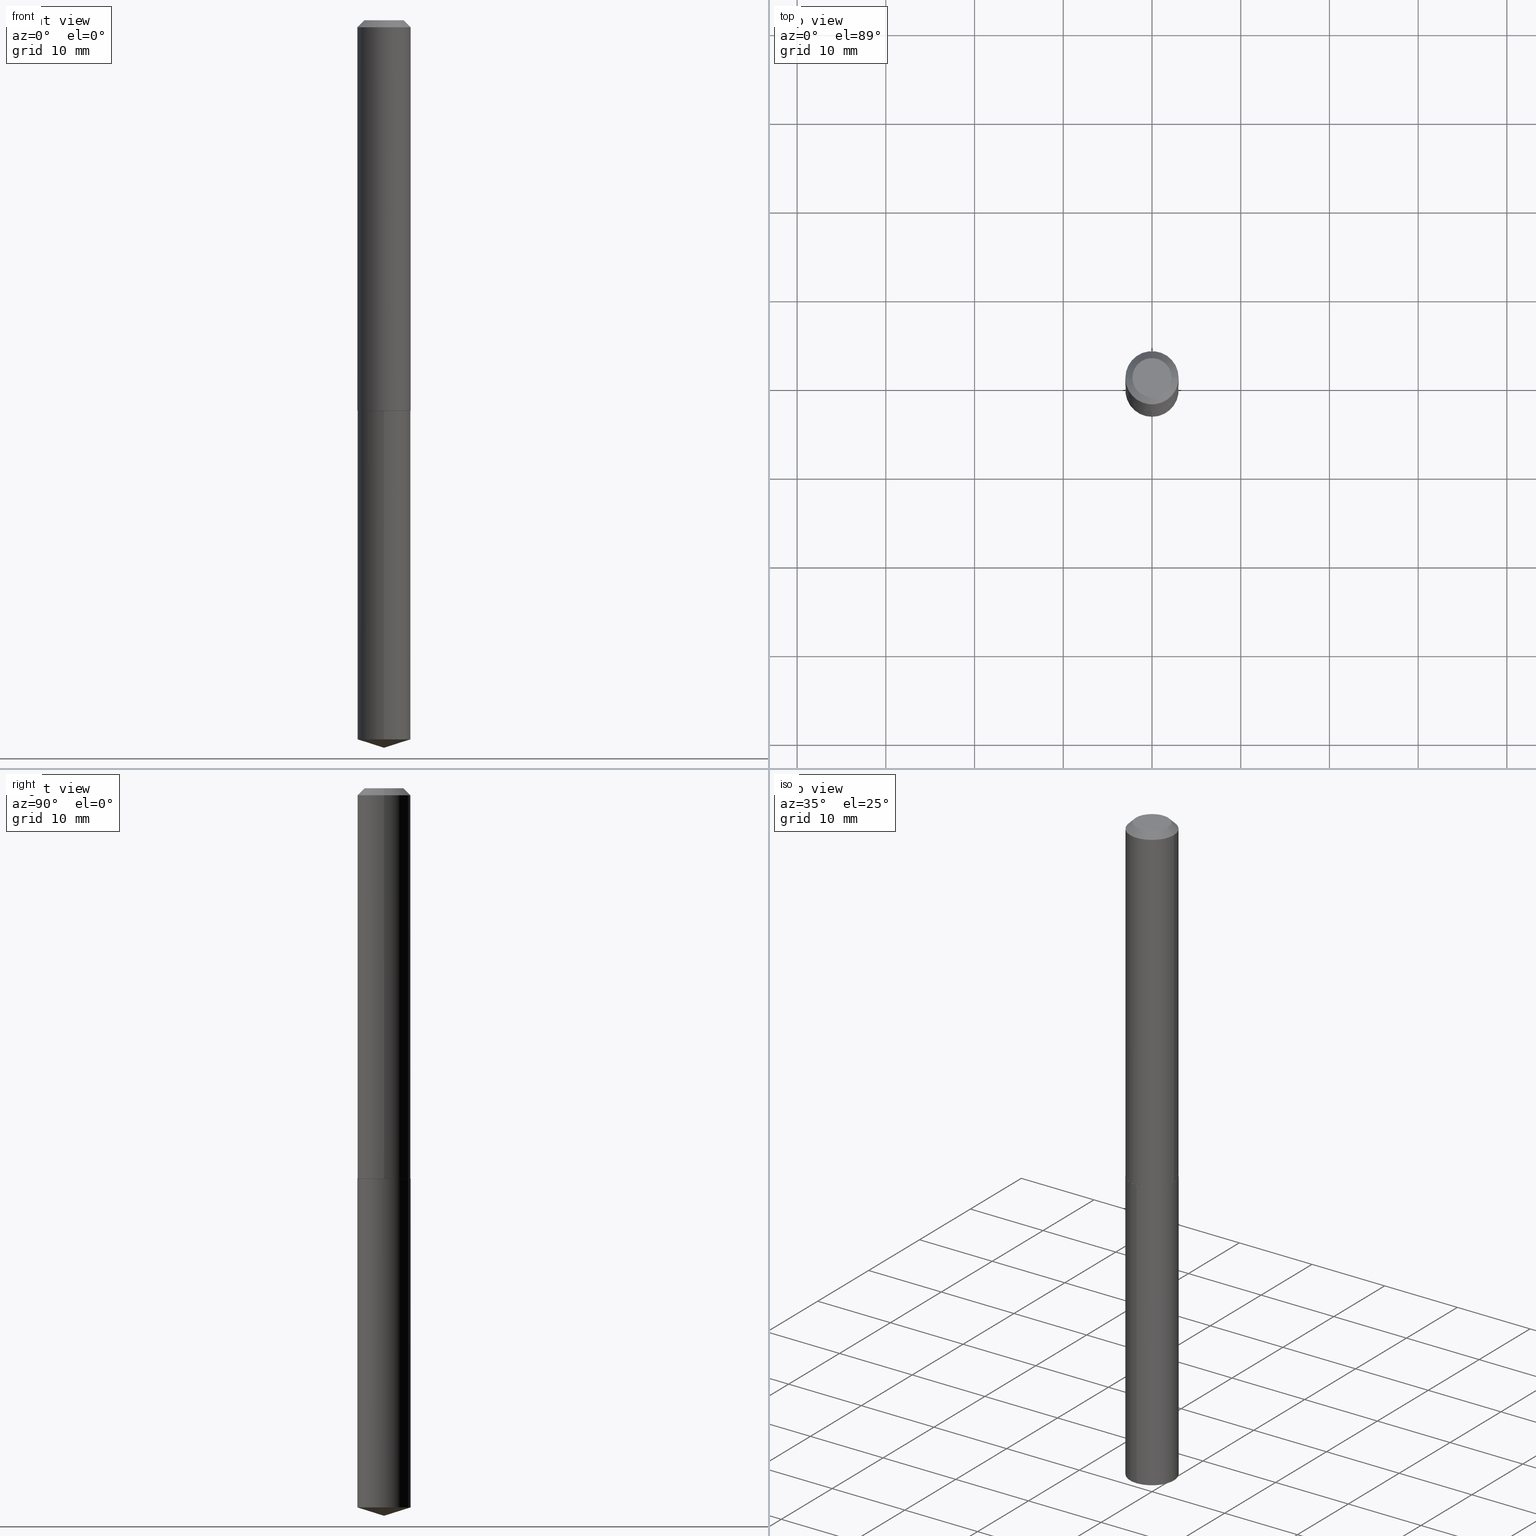
[diagram: canonical four-view strip — front | top / right | iso, engineering-drawing reading convention]
A machine part, canonical four-view strip (front | top / right | iso — engineering-drawing reading convention). The complete STEP part file that produces these views, byte-faithful:
ISO-10303-21;
HEADER;
FILE_DESCRIPTION (( 'STEP AP203' ),
    '1' );
FILE_NAME ('64131.STEP',
    '2024-04-23T10:20:50',
    ( '' ),
    ( '' ),
    'SwSTEP 2.0',
    'SolidWorks 2023',
    '' );
FILE_SCHEMA (( 'CONFIG_CONTROL_DESIGN' ));
ENDSEC;

DATA;
#1 = CARTESIAN_POINT ( 'NONE',  ( 0.000000000000000000, 0.000000000000000000, 0.000000000000000000 ) ) ;
#2 = LINE ( 'NONE', #189, #233 ) ;
#3 = DIRECTION ( 'NONE',  ( 2.438088387897960049E-29, -3.491481338843145188E-15, -1.000000000000000000 ) ) ;
#4 = DIRECTION ( 'NONE',  ( 1.000000000000000000, -6.982962677686269077E-15, 0.000000000000000000 ) ) ;
#5 = PLANE ( 'NONE',  #197 ) ;
#6 = LINE ( 'NONE', #369, #94 ) ;
#7 = APPLICATION_CONTEXT ( 'configuration controlled 3d designs of mechanical parts and assemblies' ) ;
#8 = CARTESIAN_POINT ( 'NONE',  ( 0.1176000000000005374, -6.869140386040006766E-15, -1.732200000000000184 ) ) ;
#9 = DIRECTION ( 'NONE',  ( -2.438704253266906551E-29, 3.501168563636492890E-15, 1.000000000000000000 ) ) ;
#10 = CARTESIAN_POINT ( 'NONE',  ( 4.234818331670801927E-29, -6.046198234474676063E-15, -1.731700000000000239 ) ) ;
#11 = PLANE ( 'NONE',  #272 ) ;
#12 = CALENDAR_DATE ( 2024, 23, 4 ) ;
#13 = VECTOR ( 'NONE', #275, 39.37007874015748143 ) ;
#14 = AXIS2_PLACEMENT_3D ( 'NONE', #1, #239, #81 ) ;
#15 = SECURITY_CLASSIFICATION_LEVEL ( 'unclassified' ) ;
#16 = CC_DESIGN_PERSON_AND_ORGANIZATION_ASSIGNMENT ( #291, #48, ( #346 ) ) ;
#17 = LINE ( 'NONE', #58, #152 ) ;
#18 = CALENDAR_DATE ( 2024, 23, 4 ) ;
#19 = CARTESIAN_POINT ( 'NONE',  ( -0.1181000000000002048, -5.207047263541997077E-15, -1.731700000000000239 ) ) ;
#20 = APPROVAL_STATUS ( 'not_yet_approved' ) ;
#21 = CIRCLE ( 'NONE', #304, 0.1181000000000002048 ) ;
#22 = EDGE_CURVE ( 'NONE', #297, #274, #278, .T. ) ;
#23 = PERSON_AND_ORGANIZATION ( #96, #124 ) ;
#24 = ORIENTED_EDGE ( 'NONE', *, *, #33, .T. ) ;
#25 = DIRECTION ( 'NONE',  ( -2.445468806185136597E-29, 3.491481338843145583E-15, 1.000000000000000000 ) ) ;
#26 = EDGE_LOOP ( 'NONE', ( #74, #269, #156, #247 ) ) ;
#27 = ADVANCED_BREP_SHAPE_REPRESENTATION ( '64131', ( #356, #91, #14 ), #244 ) ;
#28 = EDGE_CURVE ( 'NONE', #331, #301, #279, .T. ) ;
#29 = ORIENTED_EDGE ( 'NONE', *, *, #322, .F. ) ;
#30 = ORIENTED_EDGE ( 'NONE', *, *, #230, .T. ) ;
#31 = DIMENSIONAL_EXPONENTS ( 1.000000000000000000, 0.000000000000000000, 0.000000000000000000, 0.000000000000000000, 0.000000000000000000, 0.000000000000000000, 0.000000000000000000 ) ;
#32 = ORIENTED_EDGE ( 'NONE', *, *, #28, .F. ) ;
#33 = EDGE_CURVE ( 'NONE', #301, #121, #41, .T. ) ;
#34 =( LENGTH_UNIT ( ) NAMED_UNIT ( * ) SI_UNIT ( $, .METRE. ) );
#35 = PRODUCT ( '64131', '64131', '', ( #358 ) ) ;
#36 = DIRECTION ( 'NONE',  ( -6.982962677686265922E-15, -1.000000000000000000, 4.626330217890369336E-15 ) ) ;
#37 = DIRECTION ( 'NONE',  ( -2.445468806185136597E-29, 3.491481338843145583E-15, 1.000000000000000000 ) ) ;
#38 = LENGTH_MEASURE_WITH_UNIT ( LENGTH_MEASURE( 0.02539999999999999897 ), #34 );
#39 = EDGE_CURVE ( 'NONE', #148, #178, #143, .T. ) ;
#40 = DIRECTION ( 'NONE',  ( -6.982962677686265922E-15, -1.000000000000000000, 4.626330217890369336E-15 ) ) ;
#41 = CIRCLE ( 'NONE', #378, 0.1180999999999999966 ) ;
#42 = CARTESIAN_POINT ( 'NONE',  ( 0.1181000000000001077, -8.246878922347488542E-16, 5.758764772215005345E-30 ) ) ;
#43 = CIRCLE ( 'NONE', #379, 0.1181000000000000105 ) ;
#44 = APPROVAL ( #20, 'UNSPECIFIED' ) ;
#45 = DIRECTION ( 'NONE',  ( -2.445468806185136597E-29, 3.491481338843145583E-15, 1.000000000000000000 ) ) ;
#46 = ADVANCED_FACE ( 'NONE', ( #281 ), #5, .F. ) ;
#47 = CARTESIAN_POINT ( 'NONE',  ( 7.642090019328604414E-31, -1.091087918388490513E-16, -0.03125000000000021511 ) ) ;
#48 = PERSON_AND_ORGANIZATION_ROLE ( 'creator' ) ;
#49 = DIRECTION ( 'NONE',  ( -2.438088387897960049E-29, 3.491481338843145188E-15, 1.000000000000000000 ) ) ;
#50 = CC_DESIGN_PERSON_AND_ORGANIZATION_ASSIGNMENT ( #262, #377, ( #373 ) ) ;
#51 = DATE_TIME_ROLE ( 'creation_date' ) ;
#52 = VECTOR ( 'NONE', #302, 39.37007874015748143 ) ;
#53 = FACE_OUTER_BOUND ( 'NONE', #382, .T. ) ;
#54 = COORDINATED_UNIVERSAL_TIME_OFFSET ( 5, 0, .BEHIND. ) ;
#55 = DIRECTION ( 'NONE',  ( 6.776566513254250249E-15, 0.9537169507482275987, 0.3007057995042710652 ) ) ;
#56 = CALENDAR_DATE ( 2024, 23, 4 ) ;
#57 = ADVANCED_FACE ( 'NONE', ( #123 ), #303, .F. ) ;
#58 = CARTESIAN_POINT ( 'NONE',  ( 0.1181000000000002048, -6.870886126709425903E-15, -1.731700000000000239 ) ) ;
#59 = VECTOR ( 'NONE', #280, 39.37007874015748854 ) ;
#60 = ORIENTED_EDGE ( 'NONE', *, *, #335, .F. ) ;
#61 = ORIENTED_EDGE ( 'NONE', *, *, #337, .T. ) ;
#62 = EDGE_CURVE ( 'NONE', #336, #144, #2, .T. ) ;
#63 = CARTESIAN_POINT ( 'NONE',  ( 8.253766764526101525E-46, -1.178419146489205654E-31, -3.375126578450104991E-17 ) ) ;
#64 = ORIENTED_EDGE ( 'NONE', *, *, #149, .T. ) ;
#65 = ORIENTED_EDGE ( 'NONE', *, *, #62, .T. ) ;
#66 = EDGE_LOOP ( 'NONE', ( #249, #120, #241, #24 ) ) ;
#67 = EDGE_LOOP ( 'NONE', ( #30, #209 ) ) ;
#68 = ORIENTED_EDGE ( 'NONE', *, *, #39, .T. ) ;
#69 = CONICAL_SURFACE ( 'NONE', #182, 0.1181000000000002048, 0.7853981633972092480 ) ;
#70 = DIRECTION ( 'NONE',  ( -1.000000000000000000, 6.982962677686265922E-15, -4.876176775795935793E-29 ) ) ;
#71 = DIRECTION ( 'NONE',  ( -6.659769872151623411E-15, -0.9537169507482254893, 0.3007057995042776710 ) ) ;
#72 = CARTESIAN_POINT ( 'NONE',  ( 4.234818331670801927E-29, -6.046198234474676063E-15, -1.731700000000000239 ) ) ;
#73 = CC_DESIGN_PERSON_AND_ORGANIZATION_ASSIGNMENT ( #324, #351, ( #373 ) ) ;
#74 = ORIENTED_EDGE ( 'NONE', *, *, #270, .T. ) ;
#75 = CARTESIAN_POINT ( 'NONE',  ( 7.793776988633051175E-29, -1.115566999526233657E-14, -3.191063213033392021 ) ) ;
#76 = CONICAL_SURFACE ( 'NONE', #147, 0.1180999999999999966, 0.7853981633974456145 ) ;
#77 = ADVANCED_FACE ( 'NONE', ( #126 ), #175, .T. ) ;
#78 = CARTESIAN_POINT ( 'NONE',  ( 4.236041066073894168E-29, -6.047943975144097566E-15, -1.732200000000000184 ) ) ;
#79 = APPROVAL_STATUS ( 'not_yet_approved' ) ;
#80 = CARTESIAN_POINT ( 'NONE',  ( 7.793776988633051175E-29, -1.115566999526233657E-14, -3.191063213033392021 ) ) ;
#81 = DIRECTION ( 'NONE',  ( 1.000000000000000000, 0.000000000000000000, 0.000000000000000000 ) ) ;
#82 = ADVANCED_FACE ( 'NONE', ( #305 ), #103, .T. ) ;
#83 = APPROVAL_ROLE ( '' ) ;
#84 = DIRECTION ( 'NONE',  ( -2.445468806185136597E-29, 3.491481338843145583E-15, 1.000000000000000000 ) ) ;
#85 = DATE_TIME_ROLE ( 'classification_date' ) ;
#86 = VERTEX_POINT ( 'NONE', #139 ) ;
#87 = EDGE_CURVE ( 'NONE', #327, #297, #110, .T. ) ;
#88 = LOCAL_TIME ( 6, 20, 50.00000000000000000, #355 ) ;
#89 = ORIENTED_EDGE ( 'NONE', *, *, #138, .F. ) ;
#90 = ORIENTED_EDGE ( 'NONE', *, *, #362, .T. ) ;
#91 = MANIFOLD_SOLID_BREP ( 'Body-Move/Copy2[2]', #313 ) ;
#92 = EDGE_LOOP ( 'NONE', ( #330, #192, #65, #295 ) ) ;
#93 = ORIENTED_EDGE ( 'NONE', *, *, #87, .T. ) ;
#94 = VECTOR ( 'NONE', #314, 39.37007874015748854 ) ;
#95 = ADVANCED_FACE ( 'NONE', ( #53 ), #186, .T. ) ;
#96 = PERSON ( 'UNSPECIFIED', 'UNSPECIFIED', 'UNSPECIFIED', ('UNSPECIFIED'), ('UNSPECIFIED'), ('UNSPECIFIED') ) ;
#97 = ADVANCED_FACE ( 'NONE', ( #172 ), #167, .T. ) ;
#98 = AXIS2_PLACEMENT_3D ( 'NONE', #193, #308, #40 ) ;
#99 = CARTESIAN_POINT ( 'NONE',  ( 7.642090019328604414E-31, -1.091087918388490513E-16, -0.03125000000000021511 ) ) ;
#100 = DIRECTION ( 'NONE',  ( -2.445468806185136597E-29, 3.491481338843145583E-15, 1.000000000000000000 ) ) ;
#101 =( NAMED_UNIT ( * ) PLANE_ANGLE_UNIT ( ) SI_UNIT ( $, .RADIAN. ) );
#102 = DIRECTION ( 'NONE',  ( 2.438704253266906271E-29, -3.501168563636492890E-15, -1.000000000000000000 ) ) ;
#103 = CYLINDRICAL_SURFACE ( 'NONE', #129, 0.1180999999999999966 ) ;
#104 = CARTESIAN_POINT ( 'NONE',  ( 8.391509709327565901E-16, 0.1180999999999939737, -1.732200000000000628 ) ) ;
#105 = VECTOR ( 'NONE', #375, 39.37007874015748143 ) ;
#106 = DIRECTION ( 'NONE',  ( -6.982962677686265922E-15, -1.000000000000000000, 4.626330217890369336E-15 ) ) ;
#107 = CIRCLE ( 'NONE', #384, 0.1181000000000002048 ) ;
#108 = EDGE_CURVE ( 'NONE', #148, #331, #170, .T. ) ;
#109 = DATE_AND_TIME ( #12, #176 ) ;
#110 = LINE ( 'NONE', #174, #227 ) ;
#111 = ADVANCED_FACE ( 'NONE', ( #142 ), #328, .T. ) ;
#112 = CARTESIAN_POINT ( 'NONE',  ( 4.234818331670801927E-29, -6.046198234474676063E-15, -1.731700000000000239 ) ) ;
#113 = PERSON_AND_ORGANIZATION_ROLE ( 'classification_officer' ) ;
#114 = CIRCLE ( 'NONE', #334, 0.1176000000000005374 ) ;
#115 = CC_DESIGN_DATE_AND_TIME_ASSIGNMENT ( #109, #51, ( #346 ) ) ;
#116 = DIRECTION ( 'NONE',  ( -6.982962677686265922E-15, -1.000000000000000000, 3.500519750498753341E-15 ) ) ;
#117 = VERTEX_POINT ( 'NONE', #290 ) ;
#118 = ORIENTED_EDGE ( 'NONE', *, *, #385, .T. ) ;
#119 = AXIS2_PLACEMENT_3D ( 'NONE', #99, #368, #226 ) ;
#120 = ORIENTED_EDGE ( 'NONE', *, *, #165, .F. ) ;
#121 = VERTEX_POINT ( 'NONE', #232 ) ;
#122 = EDGE_CURVE ( 'NONE', #178, #86, #17, .T. ) ;
#123 = FACE_OUTER_BOUND ( 'NONE', #381, .T. ) ;
#124 = ORGANIZATION ( 'UNSPECIFIED', 'UNSPECIFIED', '' ) ;
#125 = CARTESIAN_POINT ( 'NONE',  ( 0.08684999999999999665, -7.575839282410623033E-16, -3.375126578449627977E-17 ) ) ;
#126 = FACE_OUTER_BOUND ( 'NONE', #387, .T. ) ;
#127 = DIRECTION ( 'NONE',  ( -6.982962677686265922E-15, -1.000000000000000000, 4.626330217890369336E-15 ) ) ;
#128 = CARTESIAN_POINT ( 'NONE',  ( 4.236041066073894168E-29, -6.047943975144097566E-15, -1.732200000000000184 ) ) ;
#129 = AXIS2_PLACEMENT_3D ( 'NONE', #254, #353, #266 ) ;
#130 = VECTOR ( 'NONE', #71, 39.37007874015748143 ) ;
#131 = DIRECTION ( 'NONE',  ( -2.445468806185136877E-29, 3.491481338843145188E-15, 1.000000000000000000 ) ) ;
#132 = CARTESIAN_POINT ( 'NONE',  ( 4.236041066073894168E-29, -6.047943975144097566E-15, -1.732200000000000184 ) ) ;
#133 = FACE_OUTER_BOUND ( 'NONE', #177, .T. ) ;
#134 = EDGE_CURVE ( 'NONE', #274, #144, #372, .T. ) ;
#135 = FACE_OUTER_BOUND ( 'NONE', #150, .T. ) ;
#136 = APPROVAL_DATE_TIME ( #203, #141 ) ;
#137 = CC_DESIGN_SECURITY_CLASSIFICATION ( #257, ( #373 ) ) ;
#138 = EDGE_CURVE ( 'NONE', #297, #336, #43, .T. ) ;
#139 = CARTESIAN_POINT ( 'NONE',  ( 0.1181000000000002048, -6.870886126709425903E-15, -1.731700000000000239 ) ) ;
#140 = PERSON_AND_ORGANIZATION ( #96, #124 ) ;
#141 = APPROVAL ( #231, 'UNSPECIFIED' ) ;
#142 = FACE_OUTER_BOUND ( 'NONE', #357, .T. ) ;
#143 = CIRCLE ( 'NONE', #276, 0.1176000000000005374 ) ;
#144 = VERTEX_POINT ( 'NONE', #374 ) ;
#145 = ORIENTED_EDGE ( 'NONE', *, *, #28, .T. ) ;
#146 = AXIS2_PLACEMENT_3D ( 'NONE', #47, #323, #235 ) ;
#147 = AXIS2_PLACEMENT_3D ( 'NONE', #252, #191, #195 ) ;
#148 = VERTEX_POINT ( 'NONE', #376 ) ;
#149 = EDGE_CURVE ( 'NONE', #331, #86, #21, .T. ) ;
#150 = EDGE_LOOP ( 'NONE', ( #183, #68, #361, #179 ) ) ;
#151 = ORIENTED_EDGE ( 'NONE', *, *, #362, .F. ) ;
#152 = VECTOR ( 'NONE', #285, 39.37007874015748143 ) ;
#153 = APPROVAL_PERSON_ORGANIZATION ( #321, #217, #286 ) ;
#154 = ADVANCED_FACE ( 'NONE', ( #325 ), #344, .T. ) ;
#155 =( NAMED_UNIT ( * ) SI_UNIT ( $, .STERADIAN. ) SOLID_ANGLE_UNIT ( ) );
#156 = ORIENTED_EDGE ( 'NONE', *, *, #230, .F. ) ;
#157 = DIRECTION ( 'NONE',  ( -2.438704253266906551E-29, 3.501168563636492890E-15, 1.000000000000000000 ) ) ;
#158 = LINE ( 'NONE', #42, #265 ) ;
#159 = DIRECTION ( 'NONE',  ( 1.000000000000000000, -6.982962677686269077E-15, 0.000000000000000000 ) ) ;
#160 =( CONVERSION_BASED_UNIT ( 'INCH', #38 ) LENGTH_UNIT ( ) NAMED_UNIT ( #31 ) );
#161 = DIRECTION ( 'NONE',  ( 1.000000000000000000, -6.982962677686266711E-15, 0.000000000000000000 ) ) ;
#162 = AXIS2_PLACEMENT_3D ( 'NONE', #311, #3, #70 ) ;
#163 = AXIS2_PLACEMENT_3D ( 'NONE', #316, #338, #190 ) ;
#164 = DIRECTION ( 'NONE',  ( -2.438704253266906271E-29, 3.501168563636492890E-15, 1.000000000000000000 ) ) ;
#165 = EDGE_CURVE ( 'NONE', #117, #332, #250, .T. ) ;
#166 = CARTESIAN_POINT ( 'NONE',  ( -8.246878922346700668E-16, -0.1181000000000111683, -3.191063213033391577 ) ) ;
#167 = CYLINDRICAL_SURFACE ( 'NONE', #264, 0.1181000000000001077 ) ;
#168 = COORDINATED_UNIVERSAL_TIME_OFFSET ( 5, 0, .BEHIND. ) ;
#169 = APPROVAL_ROLE ( '' ) ;
#170 = LINE ( 'NONE', #19, #105 ) ;
#171 = PERSON_AND_ORGANIZATION_ROLE ( 'design_owner' ) ;
#172 = FACE_OUTER_BOUND ( 'NONE', #339, .T. ) ;
#173 = PERSON_AND_ORGANIZATION ( #96, #124 ) ;
#174 = CARTESIAN_POINT ( 'NONE',  ( 7.896509556265763191E-29, -1.126926205241362018E-14, -3.228299999999999947 ) ) ;
#175 = CONICAL_SURFACE ( 'NONE', #389, 124.8659371009133281, 1.265363707695887685 ) ;
#176 = LOCAL_TIME ( 6, 20, 50.00000000000000000, #168 ) ;
#177 = EDGE_LOOP ( 'NONE', ( #184, #246, #187, #212 ) ) ;
#178 = VERTEX_POINT ( 'NONE', #8 ) ;
#179 = ORIENTED_EDGE ( 'NONE', *, *, #149, .F. ) ;
#180 = ADVANCED_FACE ( 'NONE', ( #133 ), #69, .T. ) ;
#181 = DIRECTION ( 'NONE',  ( 1.000000000000000000, -6.982962677686266711E-15, 4.875959881687004012E-29 ) ) ;
#182 = AXIS2_PLACEMENT_3D ( 'NONE', #72, #202, #196 ) ;
#183 = ORIENTED_EDGE ( 'NONE', *, *, #108, .F. ) ;
#184 = ORIENTED_EDGE ( 'NONE', *, *, #322, .T. ) ;
#185 = CARTESIAN_POINT ( 'NONE',  ( 8.253766764526101525E-46, -1.178419146489205654E-31, -3.375126578450104991E-17 ) ) ;
#186 = CONICAL_SURFACE ( 'NONE', #146, 0.1180999999999999966, 0.7853981633974456145 ) ;
#187 = ORIENTED_EDGE ( 'NONE', *, *, #349, .F. ) ;
#188 = CIRCLE ( 'NONE', #119, 0.1180999999999999966 ) ;
#189 = CARTESIAN_POINT ( 'NONE',  ( -8.246878922347056641E-16, -0.1181000000000060474, -1.732199999999999518 ) ) ;
#190 = DIRECTION ( 'NONE',  ( 1.000000000000000000, -6.982962677686268288E-15, 0.000000000000000000 ) ) ;
#191 = DIRECTION ( 'NONE',  ( 2.445468806185136597E-29, -3.491481338843145583E-15, -1.000000000000000000 ) ) ;
#192 = ORIENTED_EDGE ( 'NONE', *, *, #138, .T. ) ;
#193 = CARTESIAN_POINT ( 'NONE',  ( 4.236041066073894168E-29, -6.047943975144097566E-15, -1.732200000000000184 ) ) ;
#194 = DIRECTION ( 'NONE',  ( -2.445468806185136597E-29, 3.491481338843145583E-15, 1.000000000000000000 ) ) ;
#195 = DIRECTION ( 'NONE',  ( -1.000000000000000000, 6.982962677686266711E-15, 0.000000000000000000 ) ) ;
#196 = DIRECTION ( 'NONE',  ( 1.000000000000000000, -6.982962677686268288E-15, 0.000000000000000000 ) ) ;
#197 = AXIS2_PLACEMENT_3D ( 'NONE', #132, #102, #225 ) ;
#198 = DIRECTION ( 'NONE',  ( -2.438704253266906551E-29, 3.501168563636492890E-15, 1.000000000000000000 ) ) ;
#199 = DIRECTION ( 'NONE',  ( 1.000000000000000000, -6.982962677686266711E-15, 4.875959881687004012E-29 ) ) ;
#200 = DIRECTION ( 'NONE',  ( -2.438704253266906551E-29, 3.501168563636492890E-15, 1.000000000000000000 ) ) ;
#201 = PERSON_AND_ORGANIZATION ( #96, #124 ) ;
#202 = DIRECTION ( 'NONE',  ( -2.445468806185136597E-29, 3.491481338843145583E-15, 1.000000000000000000 ) ) ;
#203 = DATE_AND_TIME ( #208, #210 ) ;
#204 = LOCAL_TIME ( 6, 20, 50.00000000000000000, #259 ) ;
#205 = DIRECTION ( 'NONE',  ( 1.000000000000000000, -6.982962677686266711E-15, 4.876176775795935793E-29 ) ) ;
#206 = APPROVAL_DATE_TIME ( #348, #217 ) ;
#207 = DIRECTION ( 'NONE',  ( 1.000000000000000000, -6.982962677686268288E-15, 0.000000000000000000 ) ) ;
#208 = CALENDAR_DATE ( 2024, 23, 4 ) ;
#209 = ORIENTED_EDGE ( 'NONE', *, *, #134, .T. ) ;
#210 = LOCAL_TIME ( 6, 20, 50.00000000000000000, #54 ) ;
#211 = ORIENTED_EDGE ( 'NONE', *, *, #349, .T. ) ;
#212 = ORIENTED_EDGE ( 'NONE', *, *, #122, .F. ) ;
#213 = ADVANCED_FACE ( 'NONE', ( #310 ), #11, .F. ) ;
#214 = EDGE_LOOP ( 'NONE', ( #29, #216 ) ) ;
#215 = AXIS2_PLACEMENT_3D ( 'NONE', #78, #371, #36 ) ;
#216 = ORIENTED_EDGE ( 'NONE', *, *, #39, .F. ) ;
#217 = APPROVAL ( #79, 'UNSPECIFIED' ) ;
#218 = LINE ( 'NONE', #309, #130 ) ;
#219 = CLOSED_SHELL ( 'NONE', ( #370, #111, #77, #82, #46 ) ) ;
#220 = CARTESIAN_POINT ( 'NONE',  ( -0.1181000000000001077, 8.391509709326790846E-16, -5.809262341591049389E-30 ) ) ;
#221 = CC_DESIGN_APPROVAL ( #217, ( #346 ) ) ;
#222 = DIRECTION ( 'NONE',  ( -6.982962677686265922E-15, -1.000000000000000000, 3.500519750498753341E-15 ) ) ;
#223 = LINE ( 'NONE', #306, #59 ) ;
#224 = FACE_OUTER_BOUND ( 'NONE', #66, .T. ) ;
#225 = DIRECTION ( 'NONE',  ( 6.982962677686265922E-15, 1.000000000000000000, -3.501168563636492890E-15 ) ) ;
#226 = DIRECTION ( 'NONE',  ( 1.000000000000000000, -6.982962677686266711E-15, 0.000000000000000000 ) ) ;
#227 = VECTOR ( 'NONE', #55, 39.37007874015748143 ) ;
#228 = DIRECTION ( 'NONE',  ( -6.982962677686265922E-15, -1.000000000000000000, 4.626330217890369336E-15 ) ) ;
#229 = CARTESIAN_POINT ( 'NONE',  ( 4.236041066073894168E-29, -6.047943975144097566E-15, -1.732200000000000184 ) ) ;
#230 = EDGE_CURVE ( 'NONE', #144, #274, #288, .T. ) ;
#231 = APPROVAL_STATUS ( 'not_yet_approved' ) ;
#232 = CARTESIAN_POINT ( 'NONE',  ( 0.1180999999999999966, -9.337966840735971660E-16, -0.03125000000000021511 ) ) ;
#233 = VECTOR ( 'NONE', #164, 39.37007874015748143 ) ;
#234 = AXIS2_PLACEMENT_3D ( 'NONE', #63, #100, #199 ) ;
#235 = DIRECTION ( 'NONE',  ( -1.000000000000000000, 6.982962677686266711E-15, 0.000000000000000000 ) ) ;
#236 = CALENDAR_DATE ( 2024, 23, 4 ) ;
#237 = EDGE_CURVE ( 'NONE', #117, #301, #6, .T. ) ;
#238 = CARTESIAN_POINT ( 'NONE',  ( 4.236041066073894168E-29, -6.047943975144097566E-15, -1.732200000000000184 ) ) ;
#239 = DIRECTION ( 'NONE',  ( 0.000000000000000000, 0.000000000000000000, 1.000000000000000000 ) ) ;
#240 = UNCERTAINTY_MEASURE_WITH_UNIT (LENGTH_MEASURE( 1.000000000000000082E-05 ), #160, 'distance_accuracy_value', 'NONE');
#241 = ORIENTED_EDGE ( 'NONE', *, *, #237, .T. ) ;
#242 = COORDINATED_UNIVERSAL_TIME_OFFSET ( 5, 0, .BEHIND. ) ;
#243 = ORIENTED_EDGE ( 'NONE', *, *, #263, .T. ) ;
#244 =( GEOMETRIC_REPRESENTATION_CONTEXT ( 3 ) GLOBAL_UNCERTAINTY_ASSIGNED_CONTEXT ( ( #240 ) ) GLOBAL_UNIT_ASSIGNED_CONTEXT ( ( #160, #101, #155 ) ) REPRESENTATION_CONTEXT ( 'NONE', 'WORKASPACE' ) );
#245 = CIRCLE ( 'NONE', #315, 0.08684999999999999665 ) ;
#246 = ORIENTED_EDGE ( 'NONE', *, *, #108, .T. ) ;
#247 = ORIENTED_EDGE ( 'NONE', *, *, #62, .F. ) ;
#248 = ADVANCED_FACE ( 'NONE', ( #224 ), #76, .T. ) ;
#249 = ORIENTED_EDGE ( 'NONE', *, *, #337, .F. ) ;
#250 = CIRCLE ( 'NONE', #234, 0.08684999999999999665 ) ;
#251 = FACE_OUTER_BOUND ( 'NONE', #26, .T. ) ;
#252 = CARTESIAN_POINT ( 'NONE',  ( 7.642090019328604414E-31, -1.091087918388490513E-16, -0.03125000000000021511 ) ) ;
#253 = DESIGN_CONTEXT ( 'detailed design', #7, 'design' ) ;
#254 = CARTESIAN_POINT ( 'NONE',  ( 4.236041066073894168E-29, -6.047943975144097566E-15, -1.732200000000000184 ) ) ;
#255 = CIRCLE ( 'NONE', #329, 0.1181000000000000105 ) ;
#256 = DIRECTION ( 'NONE',  ( 1.000000000000000000, -6.982962677686268288E-15, 0.000000000000000000 ) ) ;
#257 = SECURITY_CLASSIFICATION ( '', '', #15 ) ;
#258 = CARTESIAN_POINT ( 'NONE',  ( 0.000000000000000000, 0.000000000000000000, 0.000000000000000000 ) ) ;
#259 = COORDINATED_UNIVERSAL_TIME_OFFSET ( 5, 0, .BEHIND. ) ;
#260 = PRODUCT_RELATED_PRODUCT_CATEGORY ( 'detail', '', ( #35 ) ) ;
#261 = DIRECTION ( 'NONE',  ( 1.000000000000000000, -6.982962677686265922E-15, 4.876176775795935793E-29 ) ) ;
#262 = PERSON_AND_ORGANIZATION ( #96, #124 ) ;
#263 = EDGE_CURVE ( 'NONE', #332, #117, #245, .T. ) ;
#264 = AXIS2_PLACEMENT_3D ( 'NONE', #258, #289, #205 ) ;
#265 = VECTOR ( 'NONE', #131, 39.37007874015748143 ) ;
#266 = DIRECTION ( 'NONE',  ( -6.982962677686265922E-15, -1.000000000000000000, 4.626330217890369336E-15 ) ) ;
#267 = DATE_AND_TIME ( #56, #204 ) ;
#268 = CC_DESIGN_PERSON_AND_ORGANIZATION_ASSIGNMENT ( #201, #171, ( #35 ) ) ;
#269 = ORIENTED_EDGE ( 'NONE', *, *, #22, .T. ) ;
#270 = EDGE_CURVE ( 'NONE', #336, #297, #255, .T. ) ;
#271 = ORIENTED_EDGE ( 'NONE', *, *, #385, .F. ) ;
#272 = AXIS2_PLACEMENT_3D ( 'NONE', #319, #49, #261 ) ;
#273 = ORIENTED_EDGE ( 'NONE', *, *, #263, .F. ) ;
#274 = VERTEX_POINT ( 'NONE', #104 ) ;
#275 = DIRECTION ( 'NONE',  ( -2.438704253266906271E-29, 3.501168563636492890E-15, 1.000000000000000000 ) ) ;
#276 = AXIS2_PLACEMENT_3D ( 'NONE', #128, #45, #159 ) ;
#277 = AXIS2_PLACEMENT_3D ( 'NONE', #317, #350, #347 ) ;
#278 = LINE ( 'NONE', #341, #13 ) ;
#279 = LINE ( 'NONE', #220, #52 ) ;
#280 = DIRECTION ( 'NONE',  ( 0.7071067811865454633, -7.319954787623246579E-15, -0.7071067811865493491 ) ) ;
#281 = FACE_OUTER_BOUND ( 'NONE', #67, .T. ) ;
#282 = CONICAL_SURFACE ( 'NONE', #163, 0.1181000000000002048, 0.7853981633972092480 ) ;
#283 = CARTESIAN_POINT ( 'NONE',  ( -8.812739197568855907E-28, 1.265552397697321244E-13, 36.14177874015747705 ) ) ;
#284 = CYLINDRICAL_SURFACE ( 'NONE', #215, 0.1180999999999999966 ) ;
#285 = DIRECTION ( 'NONE',  ( 0.7071067811863784858, -2.468850131080486462E-15, 0.7071067811867165487 ) ) ;
#286 = APPROVAL_ROLE ( '' ) ;
#287 = AXIS2_PLACEMENT_3D ( 'NONE', #238, #9, #106 ) ;
#288 = CIRCLE ( 'NONE', #98, 0.1180999999999999966 ) ;
#289 = DIRECTION ( 'NONE',  ( -2.445468806185136597E-29, 3.491481338843145583E-15, 1.000000000000000000 ) ) ;
#290 = CARTESIAN_POINT ( 'NONE',  ( -0.08684999999999999665, 6.610247044764755977E-16, -3.375126578450548109E-17 ) ) ;
#291 = PERSON_AND_ORGANIZATION ( #96, #124 ) ;
#292 = APPROVAL_DATE_TIME ( #326, #44 ) ;
#293 = CC_DESIGN_PERSON_AND_ORGANIZATION_ASSIGNMENT ( #23, #113, ( #257 ) ) ;
#294 = SHAPE_DEFINITION_REPRESENTATION ( #364, #27 ) ;
#295 = ORIENTED_EDGE ( 'NONE', *, *, #134, .F. ) ;
#296 = ADVANCED_FACE ( 'NONE', ( #135 ), #282, .T. ) ;
#297 = VERTEX_POINT ( 'NONE', #340 ) ;
#298 = ORIENTED_EDGE ( 'NONE', *, *, #165, .T. ) ;
#299 = APPROVAL_PERSON_ORGANIZATION ( #173, #44, #169 ) ;
#300 = ORIENTED_EDGE ( 'NONE', *, *, #87, .F. ) ;
#301 = VERTEX_POINT ( 'NONE', #342 ) ;
#302 = DIRECTION ( 'NONE',  ( -2.445468806185136877E-29, 3.491481338843145188E-15, 1.000000000000000000 ) ) ;
#303 = PLANE ( 'NONE',  #162 ) ;
#304 = AXIS2_PLACEMENT_3D ( 'NONE', #112, #84, #207 ) ;
#305 = FACE_OUTER_BOUND ( 'NONE', #92, .T. ) ;
#306 = CARTESIAN_POINT ( 'NONE',  ( 0.1180999999999999966, -9.193336053756670343E-16, -0.03125000000000021511 ) ) ;
#307 = CARTESIAN_POINT ( 'NONE',  ( 7.642090019328604414E-31, -1.091087918388490513E-16, -0.03125000000000021511 ) ) ;
#308 = DIRECTION ( 'NONE',  ( -2.438704253266906551E-29, 3.501168563636492890E-15, 1.000000000000000000 ) ) ;
#309 = CARTESIAN_POINT ( 'NONE',  ( 7.872868940821553193E-29, -1.130282247398769155E-14, -3.228299999999999947 ) ) ;
#310 = FACE_OUTER_BOUND ( 'NONE', #214, .T. ) ;
#311 = CARTESIAN_POINT ( 'NONE',  ( 4.126883382263050762E-46, -5.892095732446028268E-32, -1.687563289225052496E-17 ) ) ;
#312 = CARTESIAN_POINT ( 'NONE',  ( 7.872868940821555435E-29, -1.130282247398769155E-14, -3.228299999999999947 ) ) ;
#313 = CLOSED_SHELL ( 'NONE', ( #95, #154, #180, #213, #296, #97, #248, #57 ) ) ;
#314 = DIRECTION ( 'NONE',  ( -0.7071067811865454633, 2.468850131082235761E-15, -0.7071067811865493491 ) ) ;
#315 = AXIS2_PLACEMENT_3D ( 'NONE', #185, #25, #181 ) ;
#316 = CARTESIAN_POINT ( 'NONE',  ( 4.234818331670801927E-29, -6.046198234474676063E-15, -1.731700000000000239 ) ) ;
#317 = CARTESIAN_POINT ( 'NONE',  ( 0.000000000000000000, 0.000000000000000000, 0.000000000000000000 ) ) ;
#318 = APPLICATION_PROTOCOL_DEFINITION ( 'international standard', 'config_control_design', 1994, #7 ) ;
#319 = CARTESIAN_POINT ( 'NONE',  ( 4.236041066073894168E-29, -6.047943975144097566E-15, -1.732200000000000184 ) ) ;
#320 = CC_DESIGN_DATE_AND_TIME_ASSIGNMENT ( #267, #85, ( #257 ) ) ;
#321 = PERSON_AND_ORGANIZATION ( #96, #124 ) ;
#322 = EDGE_CURVE ( 'NONE', #178, #148, #114, .T. ) ;
#323 = DIRECTION ( 'NONE',  ( 2.445468806185136597E-29, -3.491481338843145583E-15, -1.000000000000000000 ) ) ;
#324 = PERSON_AND_ORGANIZATION ( #96, #124 ) ;
#325 = FACE_OUTER_BOUND ( 'NONE', #360, .T. ) ;
#326 = DATE_AND_TIME ( #236, #88 ) ;
#327 = VERTEX_POINT ( 'NONE', #312 ) ;
#328 = CONICAL_SURFACE ( 'NONE', #333, 124.8659371009133281, 1.265363707695887685 ) ;
#329 = AXIS2_PLACEMENT_3D ( 'NONE', #75, #198, #127 ) ;
#330 = ORIENTED_EDGE ( 'NONE', *, *, #22, .F. ) ;
#331 = VERTEX_POINT ( 'NONE', #345 ) ;
#332 = VERTEX_POINT ( 'NONE', #125 ) ;
#333 = AXIS2_PLACEMENT_3D ( 'NONE', #380, #200, #116 ) ;
#334 = AXIS2_PLACEMENT_3D ( 'NONE', #229, #194, #4 ) ;
#335 = EDGE_CURVE ( 'NONE', #121, #301, #188, .T. ) ;
#336 = VERTEX_POINT ( 'NONE', #166 ) ;
#337 = EDGE_CURVE ( 'NONE', #332, #121, #223, .T. ) ;
#338 = DIRECTION ( 'NONE',  ( -2.445468806185136597E-29, 3.491481338843145583E-15, 1.000000000000000000 ) ) ;
#339 = EDGE_LOOP ( 'NONE', ( #32, #64, #118, #383 ) ) ;
#340 = CARTESIAN_POINT ( 'NONE',  ( 8.391509709327560971E-16, 0.1180999999999888250, -3.191063213033392465 ) ) ;
#341 = CARTESIAN_POINT ( 'NONE',  ( 8.391509709327204997E-16, 0.1180999999999939598, -1.732200000000000628 ) ) ;
#342 = CARTESIAN_POINT ( 'NONE',  ( -0.1180999999999999966, -2.238502542224083201E-15, -0.03125000000000021511 ) ) ;
#343 = LOCAL_TIME ( 6, 20, 50.00000000000000000, #242 ) ;
#344 = CYLINDRICAL_SURFACE ( 'NONE', #277, 0.1181000000000001077 ) ;
#345 = CARTESIAN_POINT ( 'NONE',  ( -0.1181000000000002048, -5.207047263541997077E-15, -1.731700000000000239 ) ) ;
#346 = PRODUCT_DEFINITION ( 'UNKNOWN', '', #373, #253 ) ;
#347 = DIRECTION ( 'NONE',  ( 1.000000000000000000, -6.982962677686266711E-15, 4.876176775795935793E-29 ) ) ;
#348 = DATE_AND_TIME ( #18, #343 ) ;
#349 = EDGE_CURVE ( 'NONE', #86, #331, #107, .T. ) ;
#350 = DIRECTION ( 'NONE',  ( -2.445468806185136597E-29, 3.491481338843145583E-15, 1.000000000000000000 ) ) ;
#351 = PERSON_AND_ORGANIZATION_ROLE ( 'creator' ) ;
#352 = CC_DESIGN_APPROVAL ( #44, ( #257 ) ) ;
#353 = DIRECTION ( 'NONE',  ( -2.438704253266906551E-29, 3.501168563636492890E-15, 1.000000000000000000 ) ) ;
#354 = DIRECTION ( 'NONE',  ( -2.438704253266906551E-29, 3.501168563636492890E-15, 1.000000000000000000 ) ) ;
#355 = COORDINATED_UNIVERSAL_TIME_OFFSET ( 5, 0, .BEHIND. ) ;
#356 = MANIFOLD_SOLID_BREP ( 'Body-Move/Copy2[1]', #219 ) ;
#357 = EDGE_LOOP ( 'NONE', ( #151, #93, #359 ) ) ;
#358 = MECHANICAL_CONTEXT ( 'NONE', #388, 'mechanical' ) ;
#359 = ORIENTED_EDGE ( 'NONE', *, *, #270, .F. ) ;
#360 = EDGE_LOOP ( 'NONE', ( #211, #145, #60, #271 ) ) ;
#361 = ORIENTED_EDGE ( 'NONE', *, *, #122, .T. ) ;
#362 = EDGE_CURVE ( 'NONE', #327, #336, #218, .T. ) ;
#363 = ORIENTED_EDGE ( 'NONE', *, *, #335, .T. ) ;
#364 = PRODUCT_DEFINITION_SHAPE ( 'NONE', 'NONE',  #346 ) ;
#365 = APPLICATION_PROTOCOL_DEFINITION ( 'international standard', 'config_control_design', 1994, #388 ) ;
#366 = DIRECTION ( 'NONE',  ( -2.445468806185136597E-29, 3.491481338843145583E-15, 1.000000000000000000 ) ) ;
#367 = CC_DESIGN_APPROVAL ( #141, ( #373 ) ) ;
#368 = DIRECTION ( 'NONE',  ( -2.445468806185136597E-29, 3.491481338843145583E-15, 1.000000000000000000 ) ) ;
#369 = CARTESIAN_POINT ( 'NONE',  ( -0.1180999999999999966, 7.155791003958990633E-16, -0.03125000000000021511 ) ) ;
#370 = ADVANCED_FACE ( 'NONE', ( #251 ), #284, .T. ) ;
#371 = DIRECTION ( 'NONE',  ( -2.438704253266906551E-29, 3.501168563636492890E-15, 1.000000000000000000 ) ) ;
#372 = CIRCLE ( 'NONE', #287, 0.1180999999999999966 ) ;
#373 = PRODUCT_DEFINITION_FORMATION_WITH_SPECIFIED_SOURCE ( 'ANY', '', #35, .NOT_KNOWN. ) ;
#374 = CARTESIAN_POINT ( 'NONE',  ( -8.246878922347056641E-16, -0.1181000000000060474, -1.732199999999999518 ) ) ;
#375 = DIRECTION ( 'NONE',  ( -0.7071067811863784858, 7.493145998869743582E-15, 0.7071067811867165487 ) ) ;
#376 = CARTESIAN_POINT ( 'NONE',  ( -0.1176000000000005374, -5.209696490716105911E-15, -1.732200000000000184 ) ) ;
#377 = PERSON_AND_ORGANIZATION_ROLE ( 'design_supplier' ) ;
#378 = AXIS2_PLACEMENT_3D ( 'NONE', #307, #37, #161 ) ;
#379 = AXIS2_PLACEMENT_3D ( 'NONE', #80, #354, #228 ) ;
#380 = CARTESIAN_POINT ( 'NONE',  ( -8.812739197568855907E-28, 1.265552397697321244E-13, 36.14177874015747705 ) ) ;
#381 = EDGE_LOOP ( 'NONE', ( #298, #243 ) ) ;
#382 = EDGE_LOOP ( 'NONE', ( #273, #61, #363, #386 ) ) ;
#383 = ORIENTED_EDGE ( 'NONE', *, *, #33, .F. ) ;
#384 = AXIS2_PLACEMENT_3D ( 'NONE', #10, #366, #256 ) ;
#385 = EDGE_CURVE ( 'NONE', #86, #121, #158, .T. ) ;
#386 = ORIENTED_EDGE ( 'NONE', *, *, #237, .F. ) ;
#387 = EDGE_LOOP ( 'NONE', ( #300, #90, #89 ) ) ;
#388 = APPLICATION_CONTEXT ( 'configuration controlled 3d designs of mechanical parts and assemblies' ) ;
#389 = AXIS2_PLACEMENT_3D ( 'NONE', #283, #157, #222 ) ;
#390 = APPROVAL_PERSON_ORGANIZATION ( #140, #141, #83 ) ;
ENDSEC;
END-ISO-10303-21;
